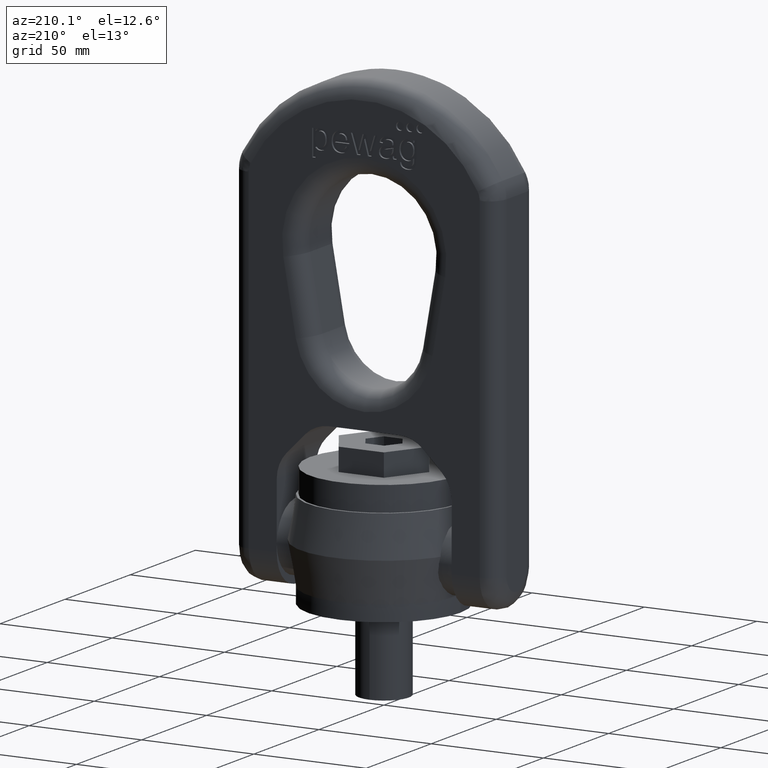
[diagram: clean part render]
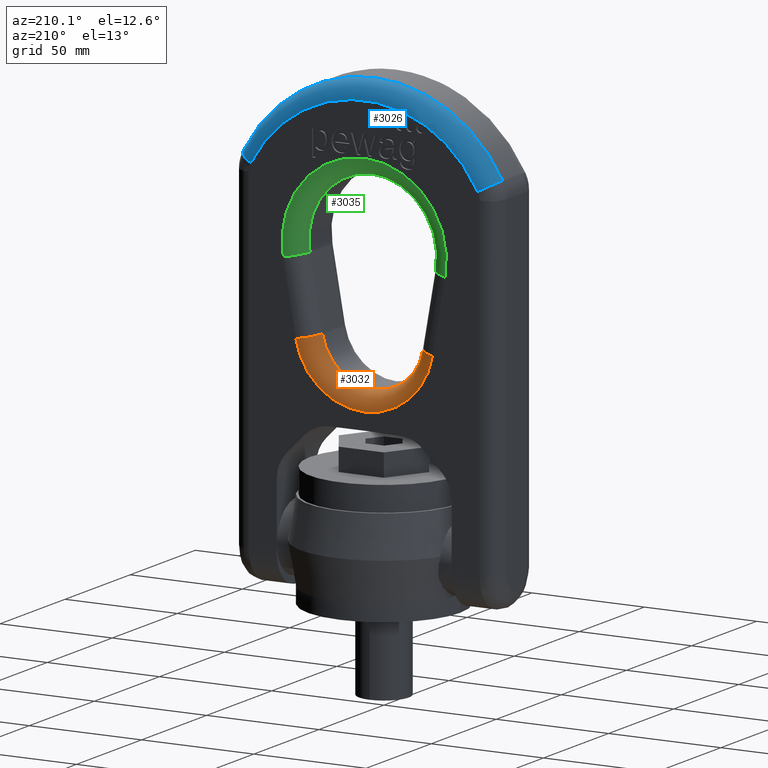
[diagram: same view with three faces highlighted in distinct colors, each labeled with its STEP entity id]
A machine part, auxiliary view with three faces highlighted in distinct colors.
Their STEP definitions:

[orange] entity #3032 — the highlighted toroidal blend (fillet) surface has major radius 30.9263 mm and minor (blend) radius 7.6 mm.
#203=TOROIDAL_SURFACE('',#6050,30.9262655562737,7.6);
#2657=FACE_OUTER_BOUND('',#3425,.T.);
#3032=ADVANCED_FACE('',(#2657),#203,.T.);
#3425=EDGE_LOOP('',(#4665,#4666,#4667,#4668));
#4665=ORIENTED_EDGE('',*,*,#5741,.F.);
#4666=ORIENTED_EDGE('',*,*,#5372,.F.);
#4667=ORIENTED_EDGE('',*,*,#5742,.F.);
#4668=ORIENTED_EDGE('',*,*,#5266,.F.);
#4827=VERTEX_POINT('',#7396);
#4830=VERTEX_POINT('',#7401);
#4912=VERTEX_POINT('',#7723);
#4917=VERTEX_POINT('',#7737);
#5266=EDGE_CURVE('',#4830,#4827,#5776,.T.);
#5372=EDGE_CURVE('',#4917,#4912,#5793,.T.);
#5741=EDGE_CURVE('',#4912,#4830,#5819,.T.);
#5742=EDGE_CURVE('',#4827,#4917,#5820,.T.);
#5776=CIRCLE('',#5883,30.9262655562737);
#5793=CIRCLE('',#5907,23.3262655562737);
#5819=CIRCLE('',#6048,7.6);
#5820=CIRCLE('',#6049,7.6);
#5883=AXIS2_PLACEMENT_3D('',#7402,#6264,#6265);
#5907=AXIS2_PLACEMENT_3D('',#7769,#6367,#6368);
#6048=AXIS2_PLACEMENT_3D('',#9829,#6904,#6905);
#6049=AXIS2_PLACEMENT_3D('',#9830,#6906,#6907);
#6050=AXIS2_PLACEMENT_3D('',#9831,#6908,#6909);
#6264=DIRECTION('',(-2.34291072916505E-15,-1.,0.));
#6265=DIRECTION('',(-1.,2.35587403394865E-15,0.));
#6367=DIRECTION('',(2.34291072916505E-15,1.,0.));
#6368=DIRECTION('',(-1.,2.34258627303386E-15,0.));
#6904=DIRECTION('',(-0.17364817766693,4.75628795304339E-16,0.984807753012208));
#6905=DIRECTION('',(0.984807753012208,0.,0.17364817766693));
#6906=DIRECTION('',(0.173648177666932,-3.96357329420287E-16,0.984807753012208));
#6907=DIRECTION('',(0.984807753012208,0.,-0.173648177666932));
#6908=DIRECTION('',(2.34291072916505E-15,1.,0.));
#6909=DIRECTION('',(-1.,2.34140577728808E-15,0.));
#7396=CARTESIAN_POINT('',(30.4564260915328,15.1999999999999,103.955975900383));
#7401=CARTESIAN_POINT('',(-30.4564260915328,15.2000000000001,103.955975900383));
#7402=CARTESIAN_POINT('',(1.78061215416544E-14,15.2,109.326265556274));
#7723=CARTESIAN_POINT('',(-22.97188716864,7.60000000000007,105.275702050652));
#7737=CARTESIAN_POINT('',(22.97188716864,7.59999999999996,105.275702050652));
#7769=CARTESIAN_POINT('',(0.,7.60000000000001,109.326265556274));
#9829=CARTESIAN_POINT('',(-30.4564260915328,7.60000000000007,103.955975900383));
#9830=CARTESIAN_POINT('',(30.4564260915328,7.59999999999993,103.955975900383));
#9831=CARTESIAN_POINT('',(0.,7.6,109.326265556274));

[blue] entity #3026 — the highlighted toroidal blend (fillet) surface has major radius 57.2026 mm and minor (blend) radius 7.6 mm.
#202=TOROIDAL_SURFACE('',#6041,57.2026315789474,7.6);
#2651=FACE_OUTER_BOUND('',#3419,.T.);
#3026=ADVANCED_FACE('',(#2651),#202,.T.);
#3419=EDGE_LOOP('',(#4641,#4642,#4643,#4644));
#4641=ORIENTED_EDGE('',*,*,#5734,.T.);
#4642=ORIENTED_EDGE('',*,*,#5369,.F.);
#4643=ORIENTED_EDGE('',*,*,#5736,.F.);
#4644=ORIENTED_EDGE('',*,*,#5280,.F.);
#4831=VERTEX_POINT('',#7404);
#4841=VERTEX_POINT('',#7426);
#4928=VERTEX_POINT('',#7762);
#4929=VERTEX_POINT('',#7764);
#5280=EDGE_CURVE('',#4841,#4831,#5783,.T.);
#5369=EDGE_CURVE('',#4928,#4929,#5791,.T.);
#5734=EDGE_CURVE('',#4841,#4929,#5812,.T.);
#5736=EDGE_CURVE('',#4831,#4928,#5814,.T.);
#5783=CIRCLE('',#5890,57.2026315789474);
#5791=CIRCLE('',#5904,64.8026315789474);
#5812=CIRCLE('',#6037,7.6);
#5814=CIRCLE('',#6040,7.6);
#5890=AXIS2_PLACEMENT_3D('',#7427,#6285,#6286);
#5904=AXIS2_PLACEMENT_3D('',#7763,#6360,#6361);
#6037=AXIS2_PLACEMENT_3D('',#9754,#6882,#6883);
#6040=AXIS2_PLACEMENT_3D('',#9773,#6888,#6889);
#6041=AXIS2_PLACEMENT_3D('',#9774,#6890,#6891);
#6285=DIRECTION('',(2.34291072916505E-15,1.,0.));
#6286=DIRECTION('',(-1.,2.33509724925617E-15,0.));
#6360=DIRECTION('',(-2.34291072916505E-15,-1.,0.));
#6361=DIRECTION('',(-1.,2.34231697771488E-15,0.));
#6882=DIRECTION('',(0.469339749287084,-1.28553897046954E-15,0.883017666719719));
#6883=DIRECTION('',(0.883017666719719,0.,-0.469339749287084));
#6888=DIRECTION('',(0.46933974928708,-1.28553897046953E-15,-0.883017666719721));
#6889=DIRECTION('',(-0.883017666719721,0.,-0.46933974928708));
#6890=DIRECTION('',(2.34291072916505E-15,1.,0.));
#6891=DIRECTION('',(-1.,2.34231697771488E-15,0.));
#7404=CARTESIAN_POINT('',(50.5109342670699,15.1999999999999,171.044837184877));
#7426=CARTESIAN_POINT('',(-50.5109342670699,15.2000000000001,171.044837184877));
#7427=CARTESIAN_POINT('',(1.78061215416544E-14,15.2,144.197368421053));
#7762=CARTESIAN_POINT('',(57.2218685341398,7.59999999999985,174.611819279459));
#7763=CARTESIAN_POINT('',(0.,7.59999999999998,144.197368421053));
#7764=CARTESIAN_POINT('',(-57.2218685341398,7.60000000000012,174.611819279459));
#9754=CARTESIAN_POINT('',(-50.5109342670699,7.60000000000012,171.044837184877));
#9773=CARTESIAN_POINT('',(50.5109342670699,7.59999999999988,171.044837184877));
#9774=CARTESIAN_POINT('',(0.,7.6,144.197368421053));

[green] entity #3035 — the highlighted toroidal blend (fillet) surface has major radius 36.6 mm and minor (blend) radius 7.6 mm.
#204=TOROIDAL_SURFACE('',#6055,36.6,7.6);
#2660=FACE_OUTER_BOUND('',#3428,.T.);
#3035=ADVANCED_FACE('',(#2660),#204,.T.);
#3428=EDGE_LOOP('',(#4677,#4678,#4679,#4680));
#4677=ORIENTED_EDGE('',*,*,#5743,.T.);
#4678=ORIENTED_EDGE('',*,*,#5354,.F.);
#4679=ORIENTED_EDGE('',*,*,#5744,.T.);
#4680=ORIENTED_EDGE('',*,*,#5264,.F.);
#4828=VERTEX_POINT('',#7397);
#4829=VERTEX_POINT('',#7399);
#4913=VERTEX_POINT('',#7725);
#4915=VERTEX_POINT('',#7731);
#5264=EDGE_CURVE('',#4828,#4829,#5775,.T.);
#5354=EDGE_CURVE('',#4913,#4915,#5787,.T.);
#5743=EDGE_CURVE('',#4828,#4915,#5821,.T.);
#5744=EDGE_CURVE('',#4913,#4829,#5822,.T.);
#5775=CIRCLE('',#5882,36.6);
#5787=CIRCLE('',#5896,29.);
#5821=CIRCLE('',#6051,7.6);
#5822=CIRCLE('',#6053,7.6);
#5882=AXIS2_PLACEMENT_3D('',#7398,#6261,#6262);
#5896=AXIS2_PLACEMENT_3D('',#7730,#6333,#6334);
#6051=AXIS2_PLACEMENT_3D('',#9832,#6910,#6911);
#6053=AXIS2_PLACEMENT_3D('',#9834,#6914,#6915);
#6055=AXIS2_PLACEMENT_3D('',#9836,#6918,#6919);
#6261=DIRECTION('',(-2.34291072916505E-15,-1.,0.));
#6262=DIRECTION('',(-1.,2.32244399789245E-15,0.));
#6333=DIRECTION('',(2.34291072916505E-15,1.,0.));
#6334=DIRECTION('',(-1.,2.33290398493433E-15,0.));
#6910=DIRECTION('',(0.173648177666931,-4.75628795304343E-16,0.984807753012208));
#6911=DIRECTION('',(0.984807753012208,0.,-0.173648177666932));
#6914=DIRECTION('',(-0.173648177666931,3.17085863536229E-16,0.984807753012208));
#6915=DIRECTION('',(0.984807753012208,0.,0.173648177666932));
#6918=DIRECTION('',(2.34291072916505E-15,1.,0.));
#6919=DIRECTION('',(-1.,2.33520467919955E-15,0.));
#7397=CARTESIAN_POINT('',(36.0439637602469,15.1999999999999,135.64447669739));
#7398=CARTESIAN_POINT('',(1.78061215416544E-14,15.2,142.));
#7399=CARTESIAN_POINT('',(-36.0439637602468,15.2000000000001,135.64447669739));
#7725=CARTESIAN_POINT('',(-28.5594248373541,7.60000000000009,136.964202847659));
#7730=CARTESIAN_POINT('',(0.,7.59999999999998,142.));
#7731=CARTESIAN_POINT('',(28.5594248373541,7.59999999999992,136.964202847659));
#9832=CARTESIAN_POINT('',(36.0439637602468,7.59999999999992,135.64447669739));
#9834=CARTESIAN_POINT('',(-36.0439637602468,7.60000000000008,135.64447669739));
#9836=CARTESIAN_POINT('',(0.,7.6,142.));